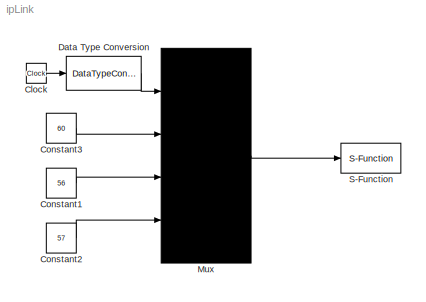
MODEL ipLink
KIND model
BLOCK [Clock] Clock
  Decimation = 10
  SID = 84
BLOCK [Constant] Constant1
  OutDataType = fixdt(1, 16)
  OutDataTypeMode = uint8
  OutDataTypeStr = uint8
  OutScaling = 2^0
  SID = 79
  Value = 56
BLOCK [Constant] Constant2
  OutDataType = fixdt(1, 16)
  OutDataTypeMode = uint8
  OutDataTypeStr = uint8
  OutScaling = 2^0
  SID = 80
  Value = 57
BLOCK [Constant] Constant3
  OutDataType = fixdt(1, 16)
  OutDataTypeMode = uint8
  OutDataTypeStr = uint8
  OutScaling = 2^0
  SID = 83
  Value = 60
BLOCK [DataTypeConversion] Data Type Conversion
  OutDataType = fixdt(1, 16)
  OutDataTypeMode = uint8
  OutDataTypeStr = uint8
  OutScaling = 2^0
  RndMeth = Floor
  SID = 85
  SaturateOnIntegerOverflow = off
BLOCK [Mux] Mux
  DisplayOption = bar
  Ports = [4, 1]
  SID = 73
BLOCK [S-Function] S-Function
  EnableBusSupport = off
  FunctionName = toIp
  Parameters = '153.104.47.61','6667'
  Ports = [1]
  SID = 1
LINE Clock:1 -> Data Type Conversion:1
LINE Constant1:1 -> Mux:3
LINE Constant2:1 -> Mux:4
LINE Constant3:1 -> Mux:2
LINE Data Type Conversion:1 -> Mux:1
LINE Mux:1 -> S-Function:1
